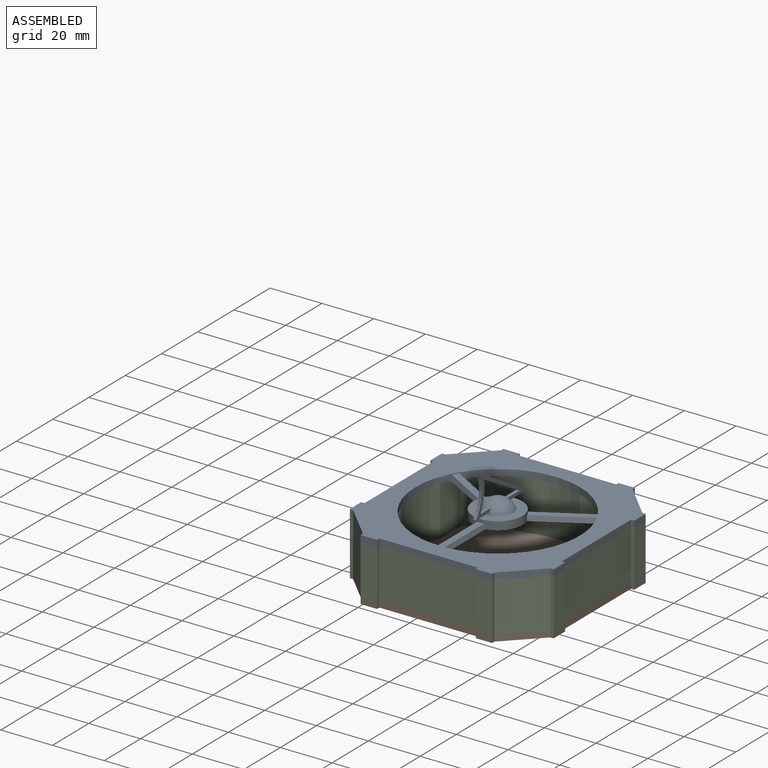
[diagram: assembled view]
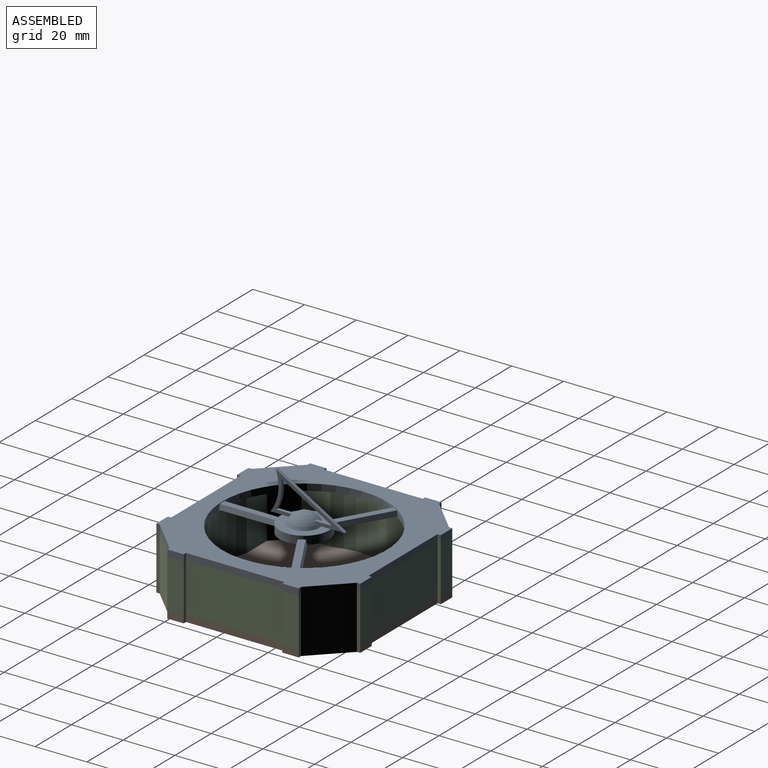
[diagram: assembled view, second angle]
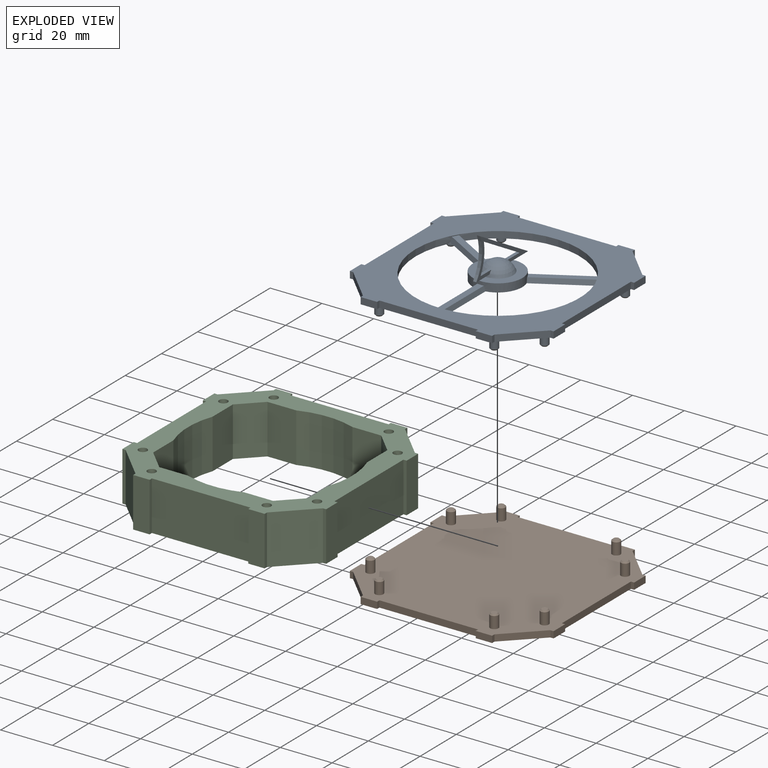
[diagram: exploded view]
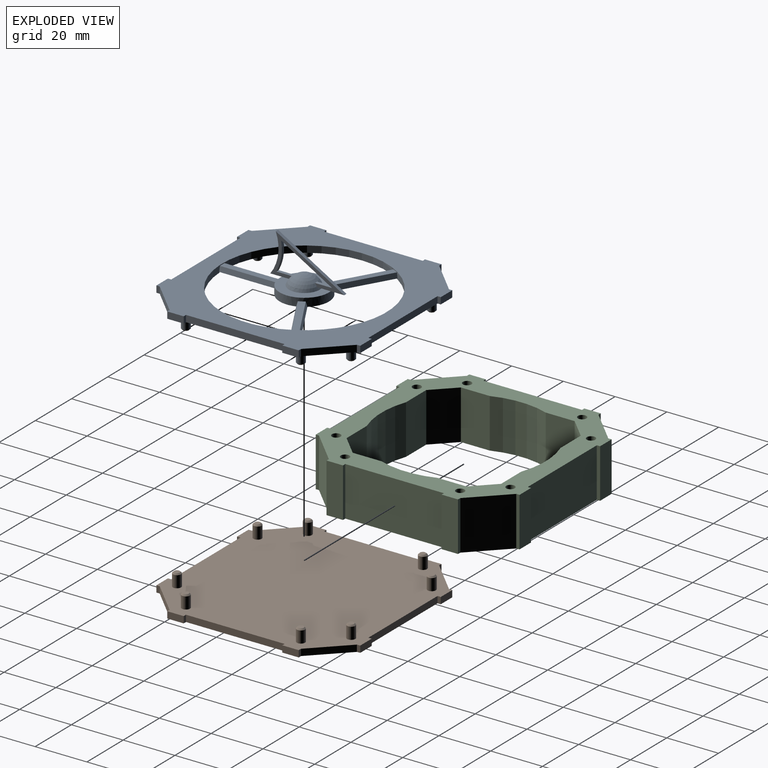
[diagram: exploded view, second angle]
ASSEMBLY  parts=3 mates=2
PART A: 82 faces, bbox 78.7x78.7x24.8 mm
  f0: plane 20.57x13.34mm, normal (0,0,-1), area 56.5mm2, adj f2,f62,f65,f66
  f1: plane 20.57x13.34mm, normal (0,0,-1), area 56.5mm2, adj f2,f61,f62,f67
  f2: cylinder r=31.75mm len=63.5mm, axis (0,0,-1), area 489.3mm2, adj f0,f1,f35,f36,f61,f63,f64,f65
  f3: plane 2.54x1.27mm, normal (-1,0,0), area 3.2mm2, adj f4,f34,f35,f36
  f4: plane 12.7x12.7mm, normal (-0.71,0.71,0), area 45.6mm2, adj f3,f5,f35,f36
  f5: plane 2.54x1.27mm, normal (0,1,0), area 3.2mm2, adj f4,f6,f35,f36
  f6: plane 6.35x2.54mm, normal (-1,0,0), area 16.1mm2, adj f5,f7,f35,f36
  f7: plane 2.54x1.27mm, normal (0,-1,0), area 3.2mm2, adj f6,f8,f35,f36
  f8: plane 38.1x2.54mm, normal (-1,0,0), area 96.8mm2, adj f7,f9,f35,f36
  f9: plane 2.54x1.27mm, normal (0,1,0), area 3.2mm2, adj f8,f10,f35,f36
  f10: plane 6.35x2.54mm, normal (-1,0,0), area 16.1mm2, adj f9,f11,f35,f36
  f11: plane 2.54x1.27mm, normal (0,-1,0), area 3.2mm2, adj f10,f12,f35,f36
  f12: plane 12.7x12.7mm, normal (-0.71,-0.71,0), area 45.6mm2, adj f11,f13,f35,f36
  f13: plane 2.54x1.27mm, normal (-1,0,0), area 3.2mm2, adj f12,f14,f35,f36
  f14: plane 6.35x2.54mm, normal (0,-1,0), area 16.1mm2, adj f13,f15,f35,f36
  f15: plane 2.54x1.27mm, normal (1,0,0), area 3.2mm2, adj f14,f16,f35,f36
  f16: plane 38.1x2.54mm, normal (0,-1,0), area 96.8mm2, adj f15,f17,f35,f36
  f17: plane 2.54x1.27mm, normal (-1,0,0), area 3.2mm2, adj f16,f18,f35,f36
  f18: plane 6.35x2.54mm, normal (0,-1,0), area 16.1mm2, adj f17,f19,f35,f36
  f19: plane 2.54x1.27mm, normal (1,0,0), area 3.2mm2, adj f18,f20,f35,f36
  f20: plane 12.7x12.7mm, normal (0.71,-0.71,0), area 45.6mm2, adj f19,f21,f35,f36
  f21: plane 2.54x1.27mm, normal (0,-1,0), area 3.2mm2, adj f20,f22,f35,f36
  f22: plane 6.35x2.54mm, normal (1,0,0), area 16.1mm2, adj f21,f23,f35,f36
  f23: plane 2.54x1.27mm, normal (0,1,0), area 3.2mm2, adj f22,f24,f35,f36
  f24: plane 38.1x2.54mm, normal (1,0,0), area 96.8mm2, adj f23,f25,f35,f36
  f25: plane 2.54x1.27mm, normal (0,-1,0), area 3.2mm2, adj f24,f26,f35,f36
  f26: plane 6.35x2.54mm, normal (1,0,0), area 16.1mm2, adj f25,f27,f35,f36
  f27: plane 2.54x1.27mm, normal (0,1,0), area 3.2mm2, adj f26,f28,f35,f36
  f28: plane 12.7x12.7mm, normal (0.71,0.71,0), area 45.6mm2, adj f27,f29,f35,f36
  f29: plane 2.54x1.27mm, normal (1,0,0), area 3.2mm2, adj f28,f30,f35,f36
  f30: plane 6.35x2.54mm, normal (0,1,0), area 16.1mm2, adj f29,f31,f35,f36
  f31: plane 2.54x1.27mm, normal (-1,0,0), area 3.2mm2, adj f30,f32,f35,f36
  f32: plane 38.1x2.54mm, normal (0,1,0), area 96.8mm2, adj f31,f33,f35,f36
  f33: plane 2.54x1.27mm, normal (1,0,0), area 3.2mm2, adj f32,f34,f35,f36
  f34: plane 6.35x2.54mm, normal (0,1,0), area 16.1mm2, adj f3,f33,f35,f36
  f35: plane 78.74x78.74mm, normal (0,0,1), area 2318.1mm2, adj f2,f3,f4,f5,f6,f7,f8,f9
  f36: plane 78.74x78.74mm, normal (0,0,-1), area 2381.5mm2, adj f2,f3,f4,f5,f6,f7,f8,f9
  f37: cylinder r=1.59mm len=4.57mm, axis (0,0,-1), area 45.6mm2, adj f35,f56
  f38: plane 2.16x2.16mm, normal (0,0,1), area 3.7mm2, adj f56
  f39: cylinder r=1.59mm len=4.57mm, axis (0,0,-1), area 45.6mm2, adj f35,f53
  f40: plane 2.16x2.16mm, normal (0,0,1), area 3.7mm2, adj f53
  f41: cylinder r=1.59mm len=4.57mm, axis (0,0,-1), area 45.6mm2, adj f35,f57
  f42: plane 2.16x2.16mm, normal (0,0,1), area 3.7mm2, adj f57
  f43: cylinder r=1.59mm len=4.57mm, axis (0,0,-1), area 45.6mm2, adj f35,f58
  f44: plane 2.16x2.16mm, normal (0,0,1), area 3.7mm2, adj f58
  f45: cylinder r=1.59mm len=4.57mm, axis (0,0,-1), area 45.6mm2, adj f35,f59
  f46: plane 2.16x2.16mm, normal (0,0,1), area 3.7mm2, adj f59
  f47: cylinder r=1.59mm len=4.57mm, axis (0,0,-1), area 45.6mm2, adj f35,f60
  f48: plane 2.16x2.16mm, normal (0,0,1), area 3.7mm2, adj f60
  f49: cylinder r=1.59mm len=4.57mm, axis (0,0,-1), area 45.6mm2, adj f35,f54
  f50: plane 2.16x2.16mm, normal (0,0,1), area 3.7mm2, adj f54
  f51: cylinder r=1.59mm len=4.57mm, axis (0,0,-1), area 45.6mm2, adj f35,f55
  f52: plane 2.16x2.16mm, normal (0,0,1), area 3.7mm2, adj f55
  f53: cone r=1.08mm half-angle=45deg, axis (0,0,-1), area 6mm2, adj f39,f40
  f54: cone r=1.08mm half-angle=45deg, axis (0,0,-1), area 6mm2, adj f49,f50
  f55: cone r=1.08mm half-angle=45deg, axis (0,0,-1), area 6mm2, adj f51,f52
  f56: cone r=1.08mm half-angle=45deg, axis (0,0,-1), area 6mm2, adj f37,f38
  f57: cone r=1.08mm half-angle=45deg, axis (0,0,-1), area 6mm2, adj f41,f42
  f58: cone r=1.08mm half-angle=45deg, axis (0,0,-1), area 6mm2, adj f43,f44
  f59: cone r=1.08mm half-angle=45deg, axis (0,0,-1), area 6mm2, adj f45,f46
  f60: cone r=1.08mm half-angle=45deg, axis (0,0,-1), area 6mm2, adj f47,f48
  f61: plane 19.54x11.63mm, normal (-0.48,-0.84,-0.26), area 44mm2, adj f1,f2,f62,f69
  f62: cylinder r=9.53mm len=19.05mm, axis (0,0,1), area 172.5mm2, adj f0,f1,f61,f63,f64,f65,f66,f67
  f63: plane 22.37x1.91mm, normal (-0.97,0,-0.26), area 44mm2, adj f2,f62,f68,f69
  f64: plane 22.37x1.91mm, normal (0.97,0,-0.26), area 44mm2, adj f2,f62,f68,f69
  f65: plane 19.54x11.63mm, normal (0.48,-0.84,-0.26), area 44mm2, adj f0,f2,f62,f69
  f66: plane 19.63x11.58mm, normal (-0.48,0.84,-0.26), area 44mm2, adj f0,f2,f62,f69
  f67: plane 19.63x11.58mm, normal (0.48,0.84,-0.26), area 44mm2, adj f1,f2,f62,f69
  f68: plane 22.31x2.54mm, normal (0,0,-1), area 56.5mm2, adj f2,f62,f63,f64
  f69: plane 56.69x49.14mm, normal (0,0,1), area 522.9mm2, adj f2,f61,f62,f63,f64,f65,f66,f67
  f70: plane 19.05x19.05mm, normal (0,0,-1), area 173.9mm2, adj f62,f71
  f71: sphere r=6.35mm, area 160.6mm2, adj f70,f72,f73,f75,f77,f80,f81
  f72: plane 7.24x1.27mm, normal (0,0,1), area 9.2mm2, adj f71,f79,f80,f81
  f73: plane 5.88x1.27mm, normal (0,0,-1), area 7.4mm2, adj f71,f76,f80,f81
  f74: plane 26.48x15.29mm, normal (0,0.5,-0.87), area 38.8mm2, adj f75,f79,f80,f81
  f75: plane 10.41x1.27mm, normal (0,0,1), area 13.2mm2, adj f71,f74,f80,f81
  f76: cylinder r=17.14mm len=11.36mm, axis (-1,0,0), area 14.9mm2, adj f73,f78,f80,f81
  f77: plane 6.65x1.27mm, normal (0,0,-1), area 8.4mm2, adj f71,f78,f80,f81
  f78: plane 19.67x11.36mm, normal (0,-0.5,0.87), area 28.9mm2, adj f76,f77,f80,f81
  f79: cylinder r=15.88mm len=15.29mm, axis (-1,0,0), area 20.5mm2, adj f72,f74,f80,f81
  f80: plane 28.58x15.29mm, normal (1,0,0), area 70.4mm2, adj f71,f72,f73,f74,f75,f76,f77,f78
  f81: plane 28.58x15.29mm, normal (-1,0,0), area 70.4mm2, adj f71,f72,f73,f74,f75,f76,f77,f78
PART B: 58 faces, bbox 78.7x78.7x7.6 mm
  f0: plane 2.54x1.27mm, normal (-1,0,0), area 3.2mm2, adj f1,f31,f32,f33
  f1: plane 12.7x12.7mm, normal (-0.71,0.71,0), area 45.6mm2, adj f0,f2,f32,f33
  f2: plane 2.54x1.27mm, normal (0,1,0), area 3.2mm2, adj f1,f3,f32,f33
  f3: plane 6.35x2.54mm, normal (-1,0,0), area 16.1mm2, adj f2,f4,f32,f33
  f4: plane 2.54x1.27mm, normal (0,-1,0), area 3.2mm2, adj f3,f5,f32,f33
  f5: plane 38.1x2.54mm, normal (-1,0,0), area 96.8mm2, adj f4,f6,f32,f33
  f6: plane 2.54x1.27mm, normal (0,1,0), area 3.2mm2, adj f5,f7,f32,f33
  f7: plane 6.35x2.54mm, normal (-1,0,0), area 16.1mm2, adj f6,f8,f32,f33
  f8: plane 2.54x1.27mm, normal (0,-1,0), area 3.2mm2, adj f7,f9,f32,f33
  f9: plane 12.7x12.7mm, normal (-0.71,-0.71,0), area 45.6mm2, adj f8,f10,f32,f33
  f10: plane 2.54x1.27mm, normal (-1,0,0), area 3.2mm2, adj f9,f11,f32,f33
  f11: plane 6.35x2.54mm, normal (0,-1,0), area 16.1mm2, adj f10,f12,f32,f33
  f12: plane 2.54x1.27mm, normal (1,0,0), area 3.2mm2, adj f11,f13,f32,f33
  f13: plane 38.1x2.54mm, normal (0,-1,0), area 96.8mm2, adj f12,f14,f32,f33
  f14: plane 2.54x1.27mm, normal (-1,0,0), area 3.2mm2, adj f13,f15,f32,f33
  f15: plane 6.35x2.54mm, normal (0,-1,0), area 16.1mm2, adj f14,f16,f32,f33
  f16: plane 2.54x1.27mm, normal (1,0,0), area 3.2mm2, adj f15,f17,f32,f33
  f17: plane 12.7x12.7mm, normal (0.71,-0.71,0), area 45.6mm2, adj f16,f18,f32,f33
  f18: plane 2.54x1.27mm, normal (0,-1,0), area 3.2mm2, adj f17,f19,f32,f33
  f19: plane 6.35x2.54mm, normal (1,0,0), area 16.1mm2, adj f18,f20,f32,f33
  f20: plane 2.54x1.27mm, normal (0,1,0), area 3.2mm2, adj f19,f21,f32,f33
  f21: plane 38.1x2.54mm, normal (1,0,0), area 96.8mm2, adj f20,f22,f32,f33
  f22: plane 2.54x1.27mm, normal (0,-1,0), area 3.2mm2, adj f21,f23,f32,f33
  f23: plane 6.35x2.54mm, normal (1,0,0), area 16.1mm2, adj f22,f24,f32,f33
  f24: plane 2.54x1.27mm, normal (0,1,0), area 3.2mm2, adj f23,f25,f32,f33
  f25: plane 12.7x12.7mm, normal (0.71,0.71,0), area 45.6mm2, adj f24,f26,f32,f33
  f26: plane 2.54x1.27mm, normal (1,0,0), area 3.2mm2, adj f25,f27,f32,f33
  f27: plane 6.35x2.54mm, normal (0,1,0), area 16.1mm2, adj f26,f28,f32,f33
  f28: plane 2.54x1.27mm, normal (-1,0,0), area 3.2mm2, adj f27,f29,f32,f33
  f29: plane 38.1x2.54mm, normal (0,1,0), area 96.8mm2, adj f28,f30,f32,f33
  f30: plane 2.54x1.27mm, normal (1,0,0), area 3.2mm2, adj f29,f31,f32,f33
  f31: plane 6.35x2.54mm, normal (0,1,0), area 16.1mm2, adj f0,f30,f32,f33
  f32: plane 78.74x78.74mm, normal (0,0,1), area 5485mm2, adj f0,f1,f2,f3,f4,f5,f6,f7
  f33: plane 78.74x78.74mm, normal (0,0,-1), area 5548.4mm2, adj f0,f1,f2,f3,f4,f5,f6,f7
  f34: cylinder r=1.59mm len=4.57mm, axis (0,0,-1), area 45.6mm2, adj f32,f51
  f35: plane 2.16x2.16mm, normal (0,0,1), area 3.7mm2, adj f51
  f36: cylinder r=1.59mm len=4.57mm, axis (0,0,-1), area 45.6mm2, adj f32,f50
  f37: plane 2.16x2.16mm, normal (0,0,1), area 3.7mm2, adj f50
  f38: cylinder r=1.59mm len=4.57mm, axis (0,0,-1), area 45.6mm2, adj f32,f54
  f39: plane 2.16x2.16mm, normal (0,0,1), area 3.7mm2, adj f54
  f40: cylinder r=1.59mm len=4.57mm, axis (0,0,-1), area 45.6mm2, adj f32,f55
  f41: plane 2.16x2.16mm, normal (0,0,1), area 3.7mm2, adj f55
  f42: cylinder r=1.59mm len=4.57mm, axis (0,0,-1), area 45.6mm2, adj f32,f57
  f43: plane 2.16x2.16mm, normal (0,0,1), area 3.7mm2, adj f57
  f44: cylinder r=1.59mm len=4.57mm, axis (0,0,-1), area 45.6mm2, adj f32,f56
  f45: plane 2.16x2.16mm, normal (0,0,1), area 3.7mm2, adj f56
  f46: cylinder r=1.59mm len=4.57mm, axis (0,0,-1), area 45.6mm2, adj f32,f53
  f47: plane 2.16x2.16mm, normal (0,0,1), area 3.7mm2, adj f53
  f48: cylinder r=1.59mm len=4.57mm, axis (0,0,-1), area 45.6mm2, adj f32,f52
  f49: plane 2.16x2.16mm, normal (0,0,1), area 3.7mm2, adj f52
  f50: cone r=1.08mm half-angle=45deg, axis (0,0,-1), area 6mm2, adj f36,f37
  f51: cone r=1.08mm half-angle=45deg, axis (0,0,-1), area 6mm2, adj f34,f35
  f52: cone r=1.08mm half-angle=45deg, axis (0,0,-1), area 6mm2, adj f48,f49
  f53: cone r=1.08mm half-angle=45deg, axis (0,0,-1), area 6mm2, adj f46,f47
  f54: cone r=1.08mm half-angle=45deg, axis (0,0,-1), area 6mm2, adj f38,f39
  f55: cone r=1.08mm half-angle=45deg, axis (0,0,-1), area 6mm2, adj f40,f41
  f56: cone r=1.08mm half-angle=45deg, axis (0,0,-1), area 6mm2, adj f44,f45
  f57: cone r=1.08mm half-angle=45deg, axis (0,0,-1), area 6mm2, adj f42,f43
PART C: 58 faces, bbox 78.7x78.7x19.1 mm
  f0: plane 19.05x7.86mm, normal (-0.71,0.71,0), area 211.9mm2, adj f1,f53,f56,f57
  f1: plane 19.05x11.15mm, normal (0,1,0), area 212.4mm2, adj f0,f2,f56,f57
  f2: cylinder r=31.75mm len=21.66mm, axis (0,0,-1), area 421.2mm2, adj f1,f3,f56,f57
  f3: plane 19.05x11.15mm, normal (0,1,0), area 212.4mm2, adj f2,f4,f56,f57
  f4: plane 19.05x7.86mm, normal (0.71,0.71,0), area 211.9mm2, adj f3,f5,f56,f57
  f5: plane 19.05x11.15mm, normal (1,0,0), area 212.4mm2, adj f4,f6,f56,f57
  f6: cylinder r=31.75mm len=21.66mm, axis (0,0,-1), area 421.2mm2, adj f5,f7,f56,f57
  f7: plane 19.05x11.15mm, normal (1,0,0), area 212.4mm2, adj f6,f8,f56,f57
  f8: plane 19.05x7.86mm, normal (0.71,-0.71,0), area 211.9mm2, adj f7,f9,f56,f57
  f9: plane 19.05x11.15mm, normal (0,-1,0), area 212.4mm2, adj f8,f10,f56,f57
  f10: cylinder r=31.75mm len=21.66mm, axis (0,0,-1), area 421.2mm2, adj f9,f11,f56,f57
  f11: plane 19.05x11.15mm, normal (0,-1,0), area 212.4mm2, adj f10,f12,f56,f57
  f12: plane 19.05x7.86mm, normal (-0.71,-0.71,0), area 211.9mm2, adj f11,f13,f56,f57
  f13: plane 19.05x11.15mm, normal (-1,0,0), area 212.4mm2, adj f12,f14,f56,f57
  f14: cylinder r=31.75mm len=21.66mm, axis (0,0,-1), area 421.2mm2, adj f13,f53,f56,f57
  f15: plane 19.05x12.7mm, normal (-0.71,0.71,0), area 342.1mm2, adj f16,f54,f56,f57
  f16: plane 19.05x1.27mm, normal (0,1,0), area 24.2mm2, adj f15,f17,f56,f57
  f17: plane 19.05x6.35mm, normal (-1,0,0), area 121mm2, adj f16,f18,f56,f57
  f18: plane 19.05x1.27mm, normal (0,-1,0), area 24.2mm2, adj f17,f19,f56,f57
  f19: plane 38.1x19.05mm, normal (-1,0,0), area 725.8mm2, adj f18,f20,f56,f57
  f20: plane 19.05x1.27mm, normal (0,1,0), area 24.2mm2, adj f19,f21,f56,f57
  f21: plane 19.05x6.35mm, normal (-1,0,0), area 121mm2, adj f20,f22,f56,f57
  f22: plane 19.05x1.27mm, normal (0,-1,0), area 24.2mm2, adj f21,f23,f56,f57
  f23: plane 19.05x12.7mm, normal (-0.71,-0.71,0), area 342.1mm2, adj f22,f24,f56,f57
  f24: plane 19.05x1.27mm, normal (-1,0,0), area 24.2mm2, adj f23,f25,f56,f57
  f25: plane 19.05x6.35mm, normal (0,-1,0), area 121mm2, adj f24,f26,f56,f57
  f26: plane 19.05x1.27mm, normal (1,0,0), area 24.2mm2, adj f25,f27,f56,f57
  f27: plane 38.1x19.05mm, normal (0,-1,0), area 725.8mm2, adj f26,f28,f56,f57
  f28: plane 19.05x1.27mm, normal (-1,0,0), area 24.2mm2, adj f27,f29,f56,f57
  f29: plane 19.05x6.35mm, normal (0,-1,0), area 121mm2, adj f28,f30,f56,f57
  f30: plane 19.05x1.27mm, normal (1,0,0), area 24.2mm2, adj f29,f31,f56,f57
  f31: plane 19.05x12.7mm, normal (0.71,-0.71,0), area 342.1mm2, adj f30,f32,f56,f57
  f32: plane 19.05x1.27mm, normal (0,-1,0), area 24.2mm2, adj f31,f33,f56,f57
  f33: plane 19.05x6.35mm, normal (1,0,0), area 121mm2, adj f32,f34,f56,f57
  f34: plane 19.05x1.27mm, normal (0,1,0), area 24.2mm2, adj f33,f35,f56,f57
  f35: plane 38.1x19.05mm, normal (1,0,0), area 725.8mm2, adj f34,f36,f56,f57
  f36: plane 19.05x1.27mm, normal (0,-1,0), area 24.2mm2, adj f35,f37,f56,f57
  f37: plane 19.05x6.35mm, normal (1,0,0), area 121mm2, adj f36,f38,f56,f57
  f38: plane 19.05x1.27mm, normal (0,1,0), area 24.2mm2, adj f37,f39,f56,f57
  f39: plane 19.05x12.7mm, normal (0.71,0.71,0), area 342.1mm2, adj f38,f40,f56,f57
  f40: plane 19.05x1.27mm, normal (1,0,0), area 24.2mm2, adj f39,f41,f56,f57
  f41: plane 19.05x6.35mm, normal (0,1,0), area 121mm2, adj f40,f42,f56,f57
  f42: plane 19.05x1.27mm, normal (-1,0,0), area 24.2mm2, adj f41,f43,f56,f57
  f43: plane 38.1x19.05mm, normal (0,1,0), area 725.8mm2, adj f42,f44,f56,f57
  f44: plane 19.05x1.27mm, normal (1,0,0), area 24.2mm2, adj f43,f45,f56,f57
  f45: plane 19.05x6.35mm, normal (0,1,0), area 121mm2, adj f44,f54,f56,f57
  f46: cylinder r=1.65mm len=19.05mm, axis (0,0,-1), area 197.6mm2, adj f56,f57
  f47: cylinder r=1.65mm len=19.05mm, axis (0,0,-1), area 197.6mm2, adj f56,f57
  f48: cylinder r=1.65mm len=19.05mm, axis (0,0,-1), area 197.6mm2, adj f56,f57
  f49: cylinder r=1.65mm len=19.05mm, axis (0,0,-1), area 197.6mm2, adj f56,f57
  f50: cylinder r=1.65mm len=19.05mm, axis (0,0,-1), area 197.6mm2, adj f56,f57
  f51: cylinder r=1.65mm len=19.05mm, axis (0,0,-1), area 197.6mm2, adj f56,f57
  f52: cylinder r=1.65mm len=19.05mm, axis (0,0,-1), area 197.6mm2, adj f56,f57
  f53: plane 19.05x11.15mm, normal (-1,0,0), area 212.4mm2, adj f0,f14,f56,f57
  f54: plane 19.05x1.27mm, normal (-1,0,0), area 24.2mm2, adj f15,f45,f56,f57
  f55: cylinder r=1.65mm len=19.05mm, axis (0,0,-1), area 197.6mm2, adj f56,f57
  f56: plane 78.74x78.74mm, normal (0,0,1), area 1929.9mm2, adj f0,f1,f2,f3,f4,f5,f6,f7
  f57: plane 78.74x78.74mm, normal (0,0,-1), area 1929.9mm2, adj f0,f1,f2,f3,f4,f5,f6,f7
PLACE A rot(axis=(0,-1,0),180deg) t=(0,0,21.59)mm
PLACE B at identity fixed
PLACE C t=(0,0,10.8)mm
MATE fastened C.f57 <-> B.f32  axis (0,0,-1) through (25.4,-39.37,1.27)mm
MATE fastened A.f49 <-> C.f50  axis (0,0,1) through (-22.23,-33.66,20.32)mm
